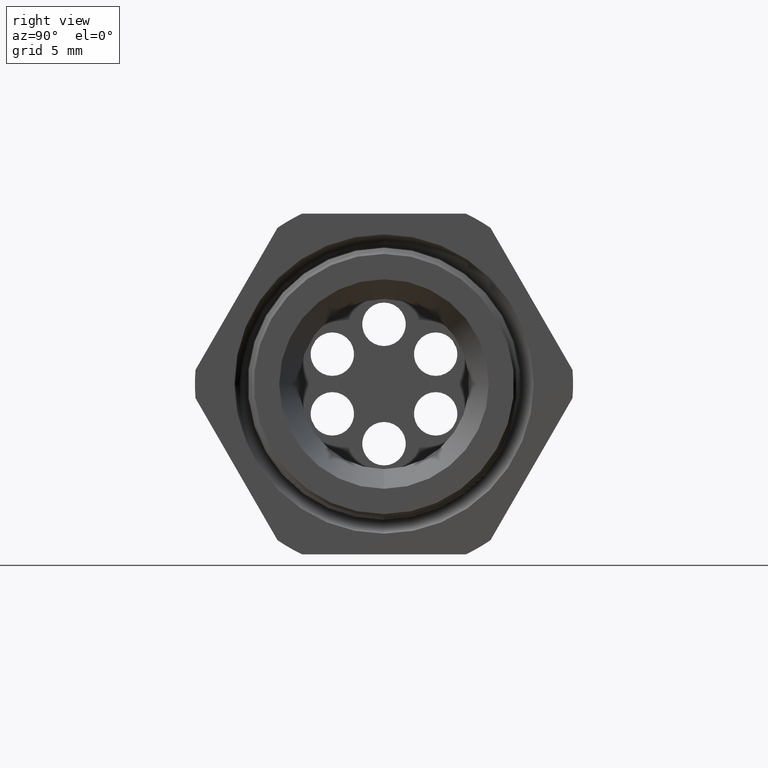
[diagram: clean part render]
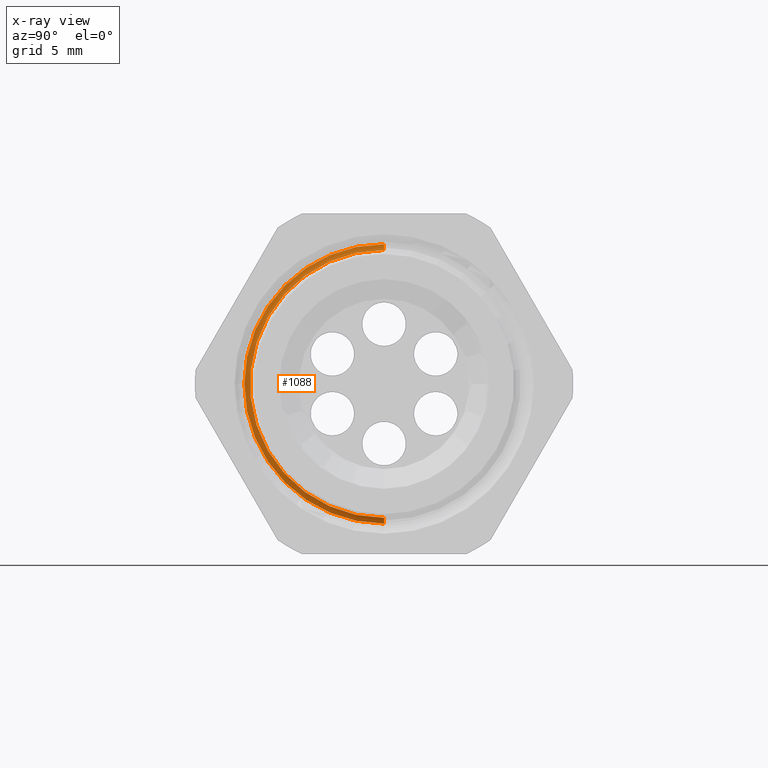
[diagram: x-ray — body ghosted, one internal face saturated and labeled with its STEP entity id]
A machine part, right view, then the same camera in x-ray: the body is ghosted and one INTERNAL B-rep face — a face not visible from any outside direction — is saturated and labeled: STEP entity #1088.
In plain terms, the highlighted conical surface has half-angle 61.5 deg.
Its self-contained STEP definition (entity closure, byte-faithful):
#45 = VERTEX_POINT ( 'NONE', #1962 ) ;
#47 = VERTEX_POINT ( 'NONE', #1960 ) ;
#857 = EDGE_CURVE ( 'NONE', #1718, #1779, #3562, .T. ) ;
#1088 = ADVANCED_FACE ( 'NONE', ( #3806 ), #3805, .T. ) ;
#1089 = EDGE_LOOP ( 'NONE', ( #1090, #1091, #1093, #1094 ) ) ;
#1090 = ORIENTED_EDGE ( 'NONE', *, *, #1781, .F. ) ;
#1091 = ORIENTED_EDGE ( 'NONE', *, *, #1092, .F. ) ;
#1092 = EDGE_CURVE ( 'NONE', #47, #45, #3804, .T. ) ;
#1093 = ORIENTED_EDGE ( 'NONE', *, *, #1797, .T. ) ;
#1094 = ORIENTED_EDGE ( 'NONE', *, *, #857, .T. ) ;
#1718 = VERTEX_POINT ( 'NONE', #4864 ) ;
#1779 = VERTEX_POINT ( 'NONE', #4995 ) ;
#1781 = EDGE_CURVE ( 'NONE', #45, #1779, #4993, .T. ) ;
#1797 = EDGE_CURVE ( 'NONE', #47, #1718, #5026, .T. ) ;
#1960 = CARTESIAN_POINT ( 'NONE',  ( -0.5716586839320380000, 0.0000000000000000000, 0.3696307351718083300 ) ) ;
#1962 = CARTESIAN_POINT ( 'NONE',  ( -0.5716586839320380000, 4.623457067722416200E-017, -0.3696307351718083300 ) ) ;
#3558 = DIRECTION ( 'NONE',  ( 0.0000000000000000000, 0.0000000000000000000, 1.000000000000000000 ) ) ;
#3559 = DIRECTION ( 'NONE',  ( 1.000000000000000000, 0.0000000000000000000, 0.0000000000000000000 ) ) ;
#3560 = CARTESIAN_POINT ( 'NONE',  ( -0.5802408424937912600, 0.0000000000000000000, 0.0000000000000000000 ) ) ;
#3561 = AXIS2_PLACEMENT_3D ( 'NONE', #3560, #3559, #3558 ) ;
#3562 = CIRCLE ( 'NONE', #3561, 0.3854371049501675900 ) ;
#3796 = DIRECTION ( 'NONE',  ( 0.0000000000000000000, 0.0000000000000000000, -1.000000000000000000 ) ) ;
#3797 = DIRECTION ( 'NONE',  ( 1.000000000000000000, 0.0000000000000000000, 0.0000000000000000000 ) ) ;
#3798 = CARTESIAN_POINT ( 'NONE',  ( -0.5716586839320380000, 0.0000000000000000000, 0.0000000000000000000 ) ) ;
#3799 = AXIS2_PLACEMENT_3D ( 'NONE', #3798, #3797, #3796 ) ;
#3800 = DIRECTION ( 'NONE',  ( 0.0000000000000000000, 0.0000000000000000000, 1.000000000000000000 ) ) ;
#3801 = DIRECTION ( 'NONE',  ( -1.000000000000000000, 0.0000000000000000000, 0.0000000000000000000 ) ) ;
#3802 = CARTESIAN_POINT ( 'NONE',  ( -0.5854330708661420500, 0.0000000000000000000, 0.0000000000000000000 ) ) ;
#3803 = AXIS2_PLACEMENT_3D ( 'NONE', #3802, #3801, #3800 ) ;
#3804 = CIRCLE ( 'NONE', #3799, 0.3696307351718083300 ) ;
#3805 = CONICAL_SURFACE ( 'NONE', #3803, 0.3950000000000000200, 1.073377489976500500 ) ;
#3806 = FACE_OUTER_BOUND ( 'NONE', #1089, .T. ) ;
#4864 = CARTESIAN_POINT ( 'NONE',  ( -0.5802408424937912600, 0.0000000000000000000, 0.3854371049501675900 ) ) ;
#4990 = DIRECTION ( 'NONE',  ( -0.4771587602596191200, 1.076240564057387800E-016, -0.8788171126619595000 ) ) ;
#4991 = VECTOR ( 'NONE', #4990, 39.37007874015748100 ) ;
#4992 = CARTESIAN_POINT ( 'NONE',  ( -0.5854330708661420500, 4.837354856632045600E-017, -0.3950000000000000200 ) ) ;
#4993 = LINE ( 'NONE', #4992, #4991 ) ;
#4995 = CARTESIAN_POINT ( 'NONE',  ( -0.5802408424937912600, 4.722094547959215600E-017, -0.3854371049501675900 ) ) ;
#5023 = DIRECTION ( 'NONE',  ( -0.4771587602596191200, 0.0000000000000000000, 0.8788171126619595000 ) ) ;
#5024 = VECTOR ( 'NONE', #5023, 39.37007874015748100 ) ;
#5025 = CARTESIAN_POINT ( 'NONE',  ( -0.5854330708661420500, 0.0000000000000000000, 0.3950000000000000200 ) ) ;
#5026 = LINE ( 'NONE', #5025, #5024 ) ;